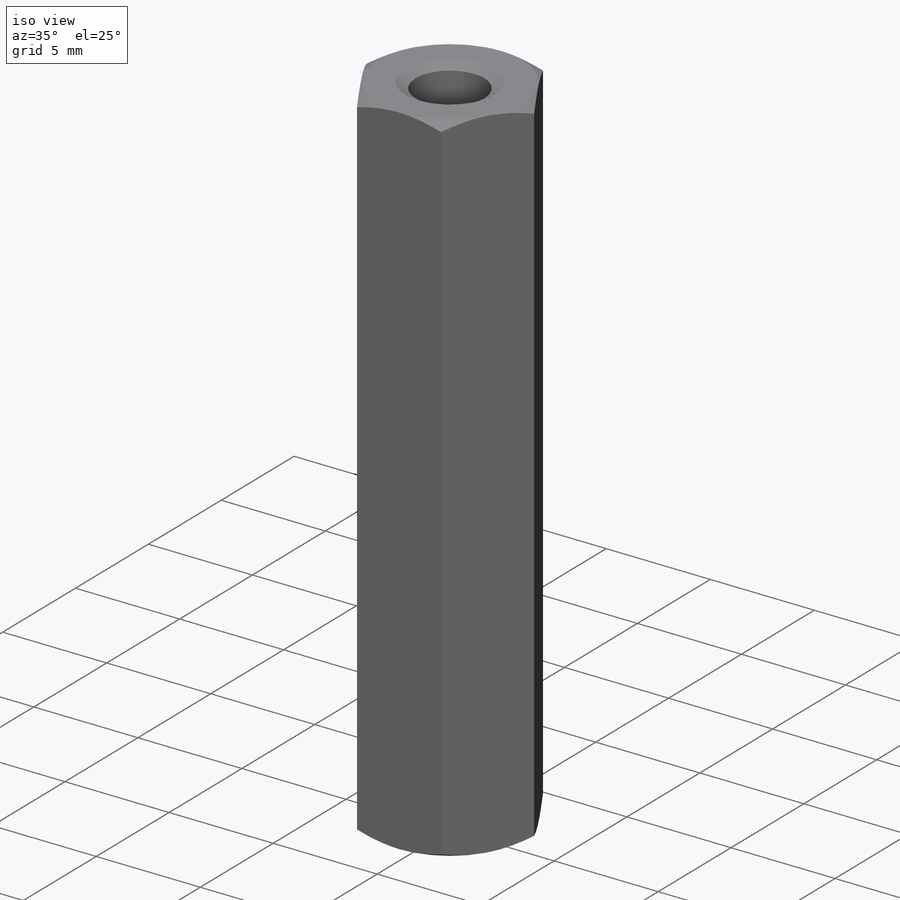
[diagram: iso view]
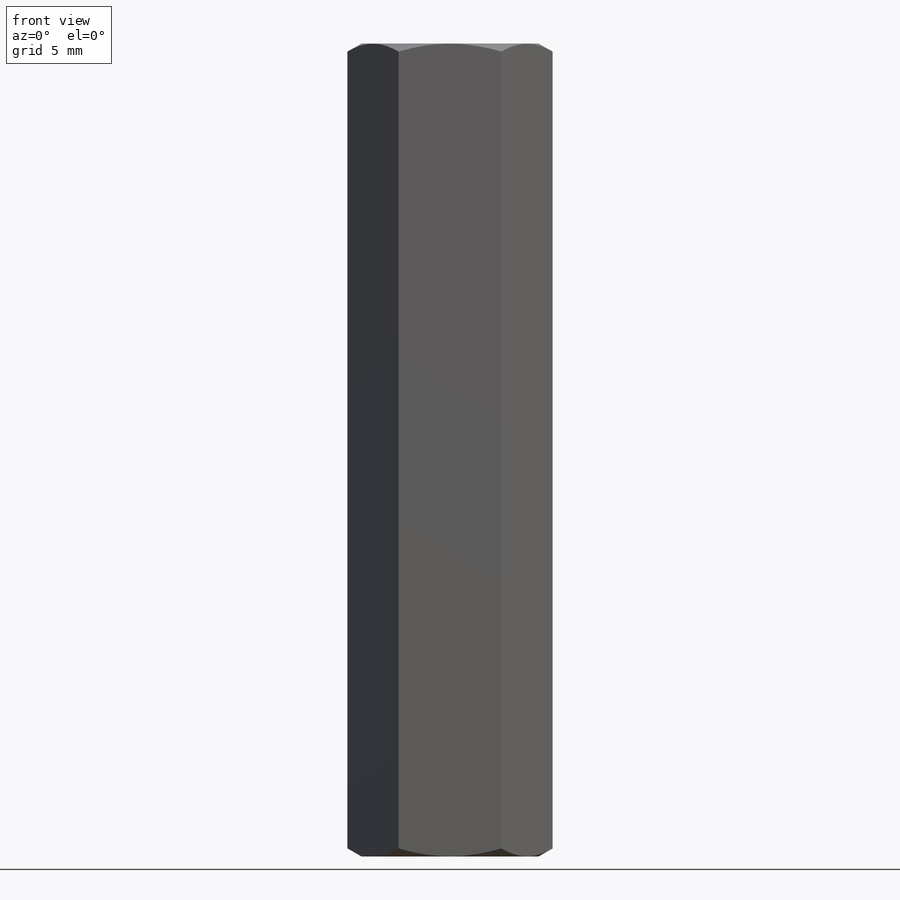
[diagram: front view]
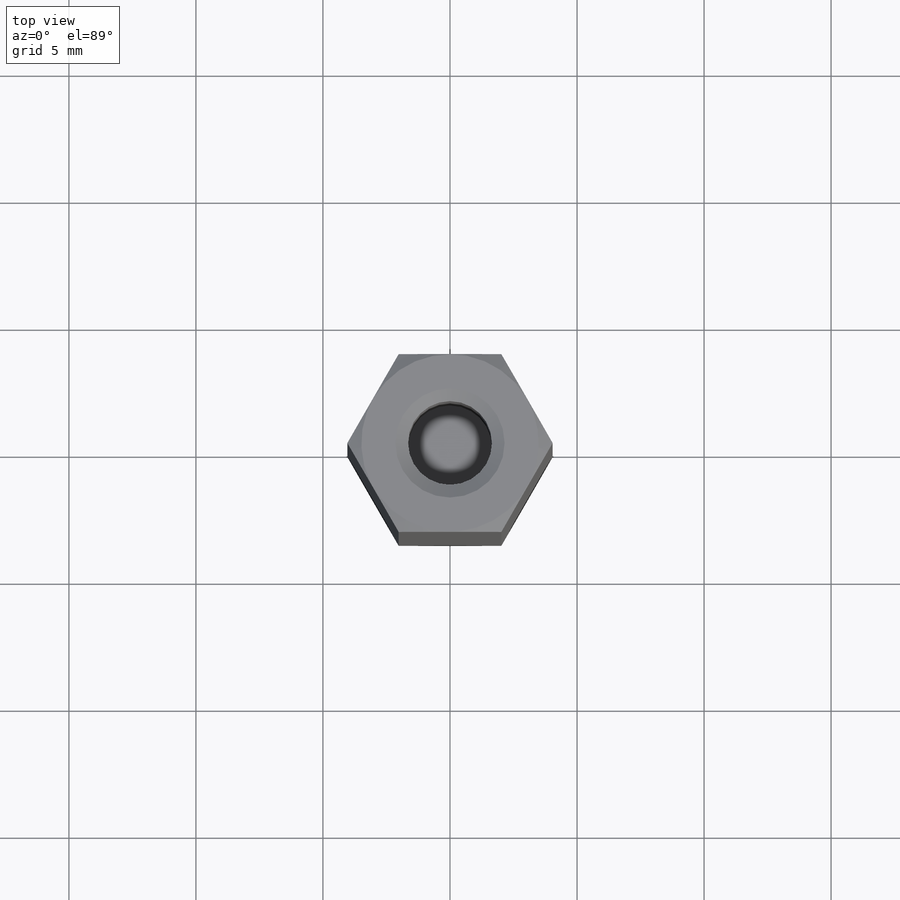
[diagram: top view]
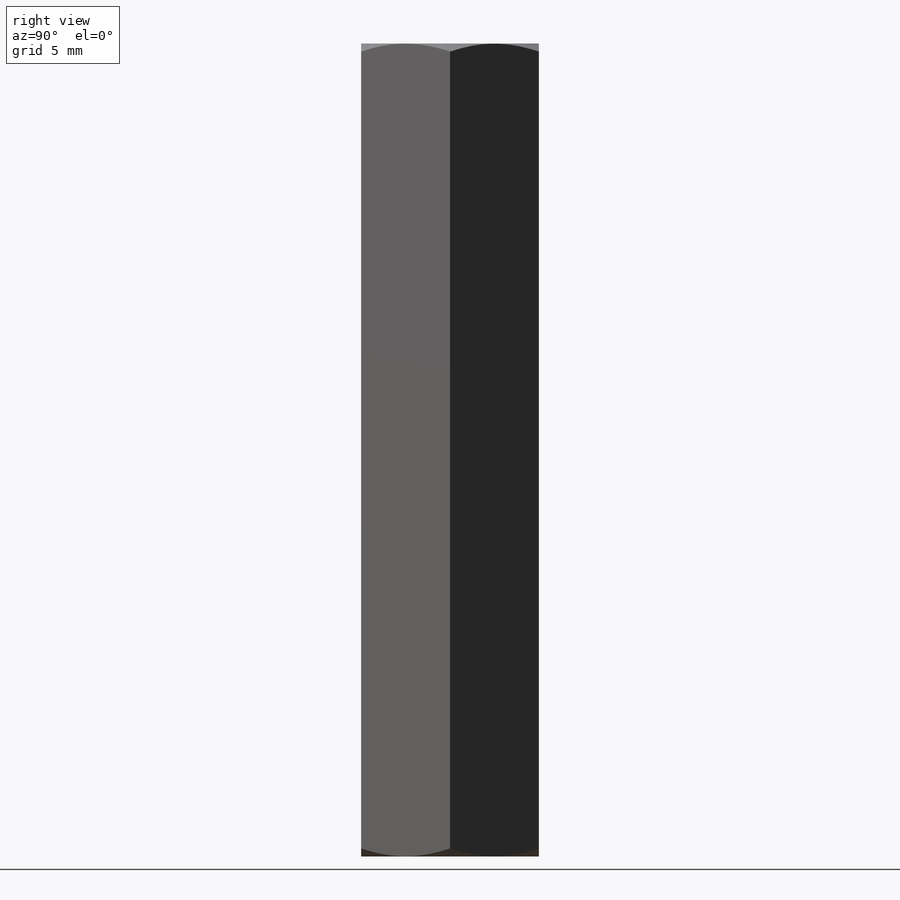
[diagram: right view]
SOLIDWORKS PART (.sldprt)
format: sldprt  version: not decoded by parser v0  size: 197,632 bytes
history: native  units: mm
features: sketch x3, chamfer x3, extrude x2, material x1, thread x1, cut_extrude x1 (+12 scaffold rows collapsed)
feature tree (23):
  scaffold x12  (default folders/planes/origin — collapsed)
  material  "Stainless Steel (ferritic)"
  sketch  "Sketch1"  dims[D2=3.3mm D1=7.0mm]
  extrude  "Boss-Extrude1"  [1 undecoded]
  thread  "Cosmetic Thread1"  Diameter=32mm  [1 undecoded]
  chamfer  "Chamfer1"  Distance=0.55mm Angle=30deg
  chamfer  "Chamfer2"  Distance=0.55mm Angle=30deg
  sketch  "Sketch2"
  cut_extrude  "Cut-Extrude1"  [1 undecoded]
  chamfer  "Chamfer3"  Distance=0.5mm Angle=30deg
  sketch  "Sketch3"  dims[D1=10.0mm D2=10.0mm]
  extrude  "Boss-Extrude2"  [1 undecoded]
decode coverage: 6 of 10 modeling features carry decoded parameters
note: 4 parameter values undecoded
summary: no parameter record found for 3 features
note: suppression state not decoded; provenance and decode notes live in map.json
